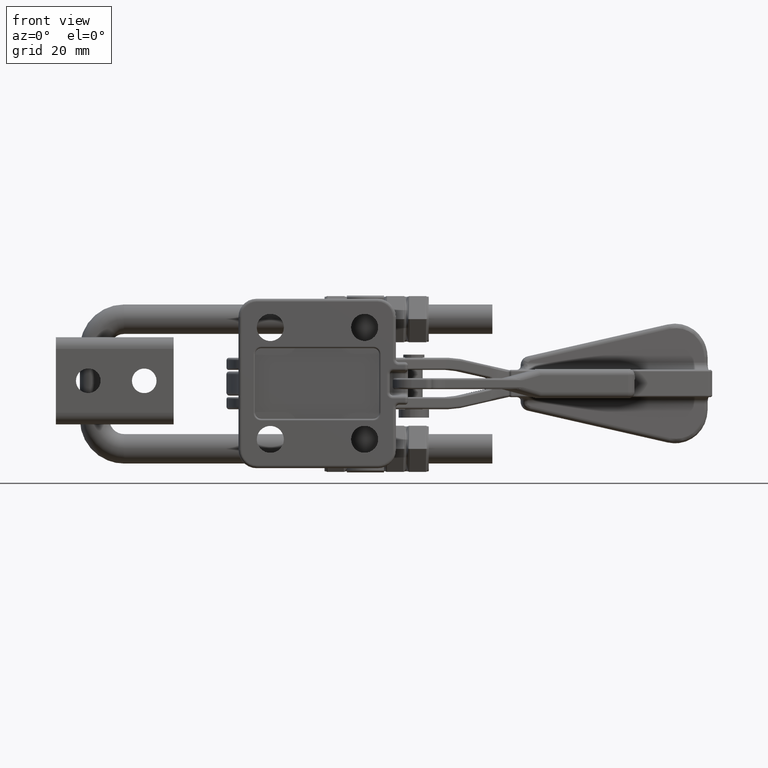
[diagram: clean part render]
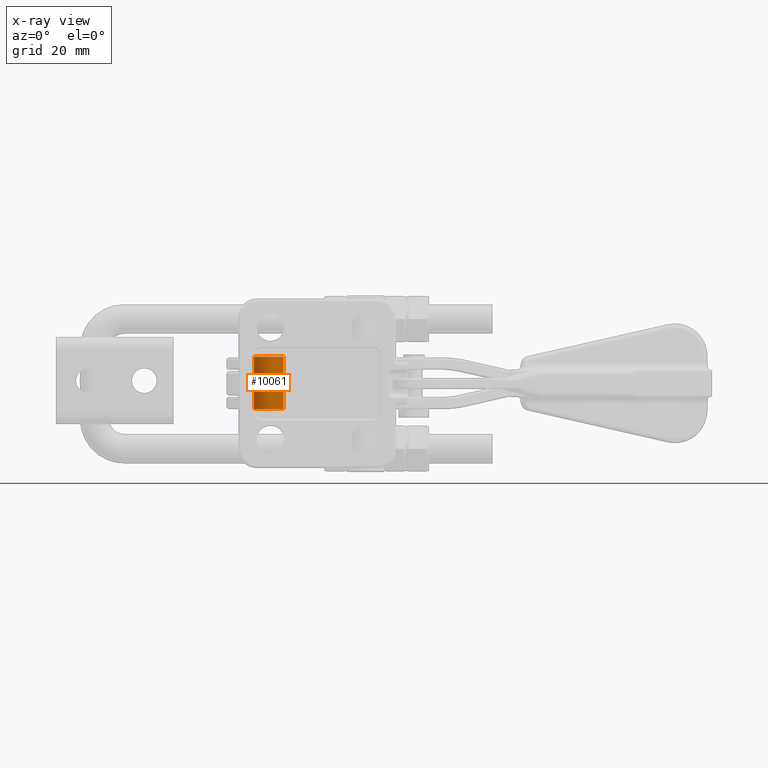
[diagram: x-ray — body ghosted, one internal face saturated and labeled with its STEP entity id]
A machine part, front view, then the same camera in x-ray: the body is ghosted and one INTERNAL B-rep face — a face not visible from any outside direction — is saturated and labeled: STEP entity #10061.
In plain terms, the highlighted cylindrical surface (bore or boss wall) has radius 2.5 mm, axis along (-0, 0, -1).
Its self-contained STEP definition (entity closure, byte-faithful):
#2004=FACE_BOUND('',#2944,.T.);
#2246=FACE_OUTER_BOUND('',#2943,.T.);
#2943=EDGE_LOOP('',(#7372));
#2944=EDGE_LOOP('',(#7373));
#3677=CIRCLE('',#10923,2.5);
#3678=CIRCLE('',#10925,2.5);
#4347=VERTEX_POINT('',#17548);
#4348=VERTEX_POINT('',#17551);
#5433=EDGE_CURVE('',#4347,#4347,#3677,.T.);
#5434=EDGE_CURVE('',#4348,#4348,#3678,.T.);
#7372=ORIENTED_EDGE('',*,*,#5433,.T.);
#7373=ORIENTED_EDGE('',*,*,#5434,.T.);
#9695=CYLINDRICAL_SURFACE('',#10924,2.5);
#10061=ADVANCED_FACE('',(#2246,#2004),#9695,.T.);
#10923=AXIS2_PLACEMENT_3D('',#17549,#12670,#12671);
#10924=AXIS2_PLACEMENT_3D('',#17550,#12672,#12673);
#10925=AXIS2_PLACEMENT_3D('',#17552,#12674,#12675);
#12670=DIRECTION('center_axis',(1.,0.,0.));
#12671=DIRECTION('ref_axis',(0.,0.,-1.));
#12672=DIRECTION('center_axis',(1.,0.,0.));
#12673=DIRECTION('ref_axis',(0.,0.,1.));
#12674=DIRECTION('center_axis',(-1.,0.,0.));
#12675=DIRECTION('ref_axis',(0.,0.,-1.));
#17548=CARTESIAN_POINT('',(-4.45,3.06161699786838E-16,-2.50000000000004));
#17549=CARTESIAN_POINT('Origin',(-4.45,0.,-4.265794067188E-14));
#17550=CARTESIAN_POINT('Origin',(-5.275,0.,-4.359275459E-14));
#17551=CARTESIAN_POINT('',(4.45,3.06161699786838E-16,-2.50000000000004));
#17552=CARTESIAN_POINT('Origin',(4.45,0.,-3.257328143407E-14));